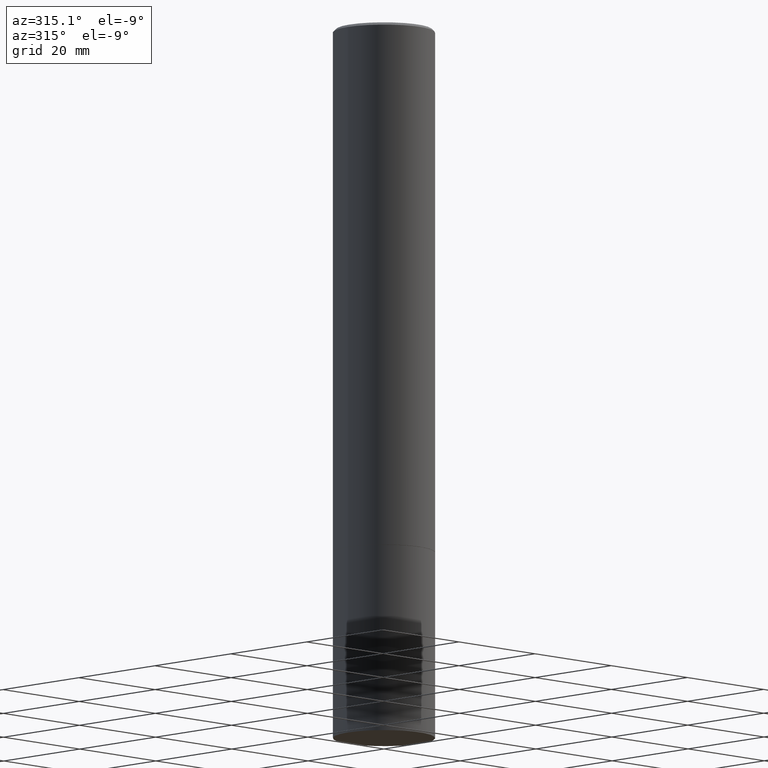
[diagram: clean part render]
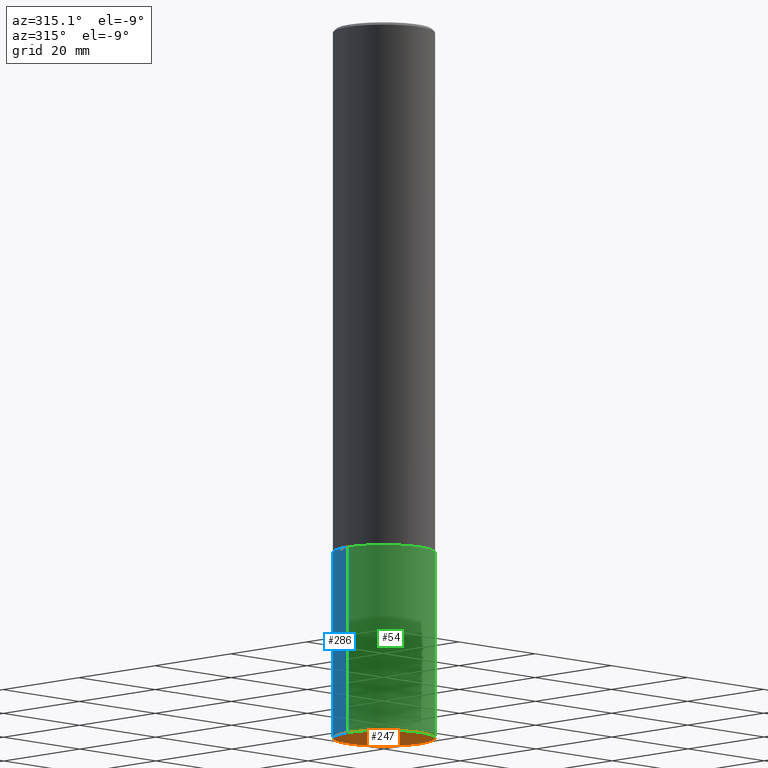
[diagram: same view with three faces highlighted in distinct colors, each labeled with its STEP entity id]
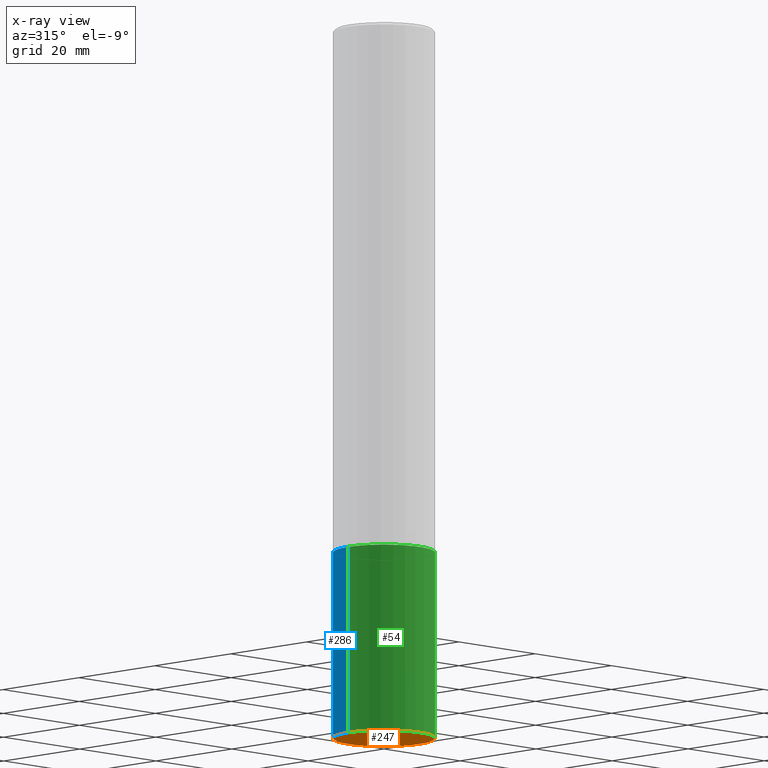
[diagram: x-ray of the same camera — body ghosted, the three highlighted faces saturated]
A machine part, auxiliary view with three faces highlighted in distinct colors.
The next image is the same camera in x-ray (body ghosted, the three faces saturated) — at least one of them is partly hidden behind the body in this view.
Their STEP definitions:

[orange] entity #247 — the highlighted planar face has unit normal (0, -0, -1).
#33 = EDGE_CURVE ( 'NONE', #48, #278, #315, .T. ) ;
#48 = VERTEX_POINT ( 'NONE', #270 ) ;
#50 = CARTESIAN_POINT ( 'NONE',  ( 0.3750000000000000555, -2.094888803305886324E-14, -5.250000000000000000 ) ) ;
#57 = CARTESIAN_POINT ( 'NONE',  ( 2.618611004132478601E-15, 0.3749999999999817368, -5.250000000000000888 ) ) ;
#81 = DIRECTION ( 'NONE',  ( -2.445468806185136597E-29, 3.491481338843145583E-15, 1.000000000000000000 ) ) ;
#108 = DIRECTION ( 'NONE',  ( 1.000000000000000000, -6.982962677686261189E-15, 0.000000000000000000 ) ) ;
#115 = DIRECTION ( 'NONE',  ( 2.438088387897960049E-29, -3.491481338843145188E-15, -1.000000000000000000 ) ) ;
#131 = ORIENTED_EDGE ( 'NONE', *, *, #192, .F. ) ;
#151 = AXIS2_PLACEMENT_3D ( 'NONE', #195, #81, #108 ) ;
#192 = EDGE_CURVE ( 'NONE', #278, #48, #268, .T. ) ;
#195 = CARTESIAN_POINT ( 'NONE',  ( 1.283871123247196713E-28, -1.833027702892651322E-14, -5.250000000000000000 ) ) ;
#214 = CARTESIAN_POINT ( 'NONE',  ( 1.283871123247196713E-28, -1.833027702892651322E-14, -5.250000000000000000 ) ) ;
#228 = PLANE ( 'NONE',  #307 ) ;
#230 = DIRECTION ( 'NONE',  ( -1.000000000000000000, 6.982962677686265922E-15, -4.876176775795935793E-29 ) ) ;
#247 = ADVANCED_FACE ( 'NONE', ( #279 ), #228, .T. ) ;
#268 = CIRCLE ( 'NONE', #151, 0.3750000000000000555 ) ;
#270 = CARTESIAN_POINT ( 'NONE',  ( -0.3750000000000000555, -1.326534834937147625E-14, -5.250000000000000000 ) ) ;
#271 = DIRECTION ( 'NONE',  ( -2.445468806185136597E-29, 3.491481338843145583E-15, 1.000000000000000000 ) ) ;
#278 = VERTEX_POINT ( 'NONE', #50 ) ;
#279 = FACE_OUTER_BOUND ( 'NONE', #338, .T. ) ;
#307 = AXIS2_PLACEMENT_3D ( 'NONE', #57, #115, #230 ) ;
#314 = ORIENTED_EDGE ( 'NONE', *, *, #33, .F. ) ;
#315 = CIRCLE ( 'NONE', #355, 0.3750000000000000555 ) ;
#335 = DIRECTION ( 'NONE',  ( 1.000000000000000000, -6.982962677686261189E-15, 0.000000000000000000 ) ) ;
#338 = EDGE_LOOP ( 'NONE', ( #131, #314 ) ) ;
#355 = AXIS2_PLACEMENT_3D ( 'NONE', #214, #271, #335 ) ;

[blue] entity #286 — the highlighted cylindrical surface (partial cylindrical patch) has radius 9.525 mm, axis along (-0, 0, 1).
#4 = CARTESIAN_POINT ( 'NONE',  ( 0.3750000000000000555, -1.614810119214954068E-14, -3.875000000000000000 ) ) ;
#36 = EDGE_CURVE ( 'NONE', #48, #129, #358, .T. ) ;
#48 = VERTEX_POINT ( 'NONE', #270 ) ;
#49 = ORIENTED_EDGE ( 'NONE', *, *, #36, .T. ) ;
#50 = CARTESIAN_POINT ( 'NONE',  ( 0.3750000000000000555, -2.094888803305886324E-14, -5.250000000000000000 ) ) ;
#53 = DIRECTION ( 'NONE',  ( -2.445468806185136877E-29, 3.491481338843145188E-15, 1.000000000000000000 ) ) ;
#77 = CARTESIAN_POINT ( 'NONE',  ( 9.476191623967404313E-29, -1.352949018801718908E-14, -3.875000000000000000 ) ) ;
#81 = DIRECTION ( 'NONE',  ( -2.445468806185136597E-29, 3.491481338843145583E-15, 1.000000000000000000 ) ) ;
#83 = CYLINDRICAL_SURFACE ( 'NONE', #288, 0.3750000000000000555 ) ;
#101 = CARTESIAN_POINT ( 'NONE',  ( -0.3750000000000000555, 2.664535259100376091E-15, -1.844600658845589598E-29 ) ) ;
#103 = DIRECTION ( 'NONE',  ( -2.445468806185136877E-29, 3.491481338843145188E-15, 1.000000000000000000 ) ) ;
#108 = DIRECTION ( 'NONE',  ( 1.000000000000000000, -6.982962677686261189E-15, 0.000000000000000000 ) ) ;
#124 = VECTOR ( 'NONE', #103, 39.37007874015748143 ) ;
#127 = EDGE_CURVE ( 'NONE', #278, #140, #170, .T. ) ;
#129 = VERTEX_POINT ( 'NONE', #252 ) ;
#136 = ORIENTED_EDGE ( 'NONE', *, *, #220, .F. ) ;
#140 = VERTEX_POINT ( 'NONE', #4 ) ;
#151 = AXIS2_PLACEMENT_3D ( 'NONE', #195, #81, #108 ) ;
#153 = ORIENTED_EDGE ( 'NONE', *, *, #192, .T. ) ;
#155 = EDGE_LOOP ( 'NONE', ( #153, #49, #136, #258 ) ) ;
#170 = LINE ( 'NONE', #365, #199 ) ;
#177 = CARTESIAN_POINT ( 'NONE',  ( 0.000000000000000000, 0.000000000000000000, 0.000000000000000000 ) ) ;
#192 = EDGE_CURVE ( 'NONE', #278, #48, #268, .T. ) ;
#195 = CARTESIAN_POINT ( 'NONE',  ( 1.283871123247196713E-28, -1.833027702892651322E-14, -5.250000000000000000 ) ) ;
#198 = DIRECTION ( 'NONE',  ( 1.000000000000000000, -6.982962677686266711E-15, 0.000000000000000000 ) ) ;
#199 = VECTOR ( 'NONE', #53, 39.37007874015748143 ) ;
#220 = EDGE_CURVE ( 'NONE', #140, #129, #327, .T. ) ;
#252 = CARTESIAN_POINT ( 'NONE',  ( -0.3750000000000000555, -1.326534834937147625E-14, -3.875000000000000000 ) ) ;
#258 = ORIENTED_EDGE ( 'NONE', *, *, #127, .F. ) ;
#260 = AXIS2_PLACEMENT_3D ( 'NONE', #77, #366, #198 ) ;
#268 = CIRCLE ( 'NONE', #151, 0.3750000000000000555 ) ;
#270 = CARTESIAN_POINT ( 'NONE',  ( -0.3750000000000000555, -1.326534834937147625E-14, -5.250000000000000000 ) ) ;
#278 = VERTEX_POINT ( 'NONE', #50 ) ;
#286 = ADVANCED_FACE ( 'NONE', ( #322 ), #83, .T. ) ;
#288 = AXIS2_PLACEMENT_3D ( 'NONE', #177, #345, #294 ) ;
#294 = DIRECTION ( 'NONE',  ( 1.000000000000000000, -6.982962677686265922E-15, 4.876176775795935793E-29 ) ) ;
#322 = FACE_OUTER_BOUND ( 'NONE', #155, .T. ) ;
#327 = CIRCLE ( 'NONE', #260, 0.3750000000000000555 ) ;
#345 = DIRECTION ( 'NONE',  ( -2.445468806185136597E-29, 3.491481338843145583E-15, 1.000000000000000000 ) ) ;
#358 = LINE ( 'NONE', #101, #124 ) ;
#365 = CARTESIAN_POINT ( 'NONE',  ( 0.3750000000000000555, -2.618611004132350016E-15, 1.828566290923476203E-29 ) ) ;
#366 = DIRECTION ( 'NONE',  ( -2.445468806185136597E-29, 3.491481338843145583E-15, 1.000000000000000000 ) ) ;

[green] entity #54 — the highlighted cylindrical surface (partial cylindrical patch) has radius 9.525 mm, axis along (-0, 0, 1).
#4 = CARTESIAN_POINT ( 'NONE',  ( 0.3750000000000000555, -1.614810119214954068E-14, -3.875000000000000000 ) ) ;
#12 = AXIS2_PLACEMENT_3D ( 'NONE', #302, #332, #353 ) ;
#18 = ORIENTED_EDGE ( 'NONE', *, *, #127, .T. ) ;
#33 = EDGE_CURVE ( 'NONE', #48, #278, #315, .T. ) ;
#36 = EDGE_CURVE ( 'NONE', #48, #129, #358, .T. ) ;
#48 = VERTEX_POINT ( 'NONE', #270 ) ;
#50 = CARTESIAN_POINT ( 'NONE',  ( 0.3750000000000000555, -2.094888803305886324E-14, -5.250000000000000000 ) ) ;
#53 = DIRECTION ( 'NONE',  ( -2.445468806185136877E-29, 3.491481338843145188E-15, 1.000000000000000000 ) ) ;
#54 = ADVANCED_FACE ( 'NONE', ( #188 ), #304, .T. ) ;
#101 = CARTESIAN_POINT ( 'NONE',  ( -0.3750000000000000555, 2.664535259100376091E-15, -1.844600658845589598E-29 ) ) ;
#103 = DIRECTION ( 'NONE',  ( -2.445468806185136877E-29, 3.491481338843145188E-15, 1.000000000000000000 ) ) ;
#124 = VECTOR ( 'NONE', #103, 39.37007874015748143 ) ;
#127 = EDGE_CURVE ( 'NONE', #278, #140, #170, .T. ) ;
#129 = VERTEX_POINT ( 'NONE', #252 ) ;
#139 = CARTESIAN_POINT ( 'NONE',  ( 9.476191623967404313E-29, -1.352949018801718908E-14, -3.875000000000000000 ) ) ;
#140 = VERTEX_POINT ( 'NONE', #4 ) ;
#170 = LINE ( 'NONE', #365, #199 ) ;
#188 = FACE_OUTER_BOUND ( 'NONE', #194, .T. ) ;
#194 = EDGE_LOOP ( 'NONE', ( #249, #221, #18, #364 ) ) ;
#199 = VECTOR ( 'NONE', #53, 39.37007874015748143 ) ;
#214 = CARTESIAN_POINT ( 'NONE',  ( 1.283871123247196713E-28, -1.833027702892651322E-14, -5.250000000000000000 ) ) ;
#221 = ORIENTED_EDGE ( 'NONE', *, *, #33, .T. ) ;
#235 = EDGE_CURVE ( 'NONE', #129, #140, #331, .T. ) ;
#239 = AXIS2_PLACEMENT_3D ( 'NONE', #139, #254, #285 ) ;
#249 = ORIENTED_EDGE ( 'NONE', *, *, #36, .F. ) ;
#252 = CARTESIAN_POINT ( 'NONE',  ( -0.3750000000000000555, -1.326534834937147625E-14, -3.875000000000000000 ) ) ;
#254 = DIRECTION ( 'NONE',  ( -2.445468806185136597E-29, 3.491481338843145583E-15, 1.000000000000000000 ) ) ;
#270 = CARTESIAN_POINT ( 'NONE',  ( -0.3750000000000000555, -1.326534834937147625E-14, -5.250000000000000000 ) ) ;
#271 = DIRECTION ( 'NONE',  ( -2.445468806185136597E-29, 3.491481338843145583E-15, 1.000000000000000000 ) ) ;
#278 = VERTEX_POINT ( 'NONE', #50 ) ;
#285 = DIRECTION ( 'NONE',  ( 1.000000000000000000, -6.982962677686266711E-15, 0.000000000000000000 ) ) ;
#302 = CARTESIAN_POINT ( 'NONE',  ( 0.000000000000000000, 0.000000000000000000, 0.000000000000000000 ) ) ;
#304 = CYLINDRICAL_SURFACE ( 'NONE', #12, 0.3750000000000000555 ) ;
#315 = CIRCLE ( 'NONE', #355, 0.3750000000000000555 ) ;
#331 = CIRCLE ( 'NONE', #239, 0.3750000000000000555 ) ;
#332 = DIRECTION ( 'NONE',  ( -2.445468806185136597E-29, 3.491481338843145583E-15, 1.000000000000000000 ) ) ;
#335 = DIRECTION ( 'NONE',  ( 1.000000000000000000, -6.982962677686261189E-15, 0.000000000000000000 ) ) ;
#353 = DIRECTION ( 'NONE',  ( 1.000000000000000000, -6.982962677686265922E-15, 4.876176775795935793E-29 ) ) ;
#355 = AXIS2_PLACEMENT_3D ( 'NONE', #214, #271, #335 ) ;
#358 = LINE ( 'NONE', #101, #124 ) ;
#364 = ORIENTED_EDGE ( 'NONE', *, *, #235, .F. ) ;
#365 = CARTESIAN_POINT ( 'NONE',  ( 0.3750000000000000555, -2.618611004132350016E-15, 1.828566290923476203E-29 ) ) ;